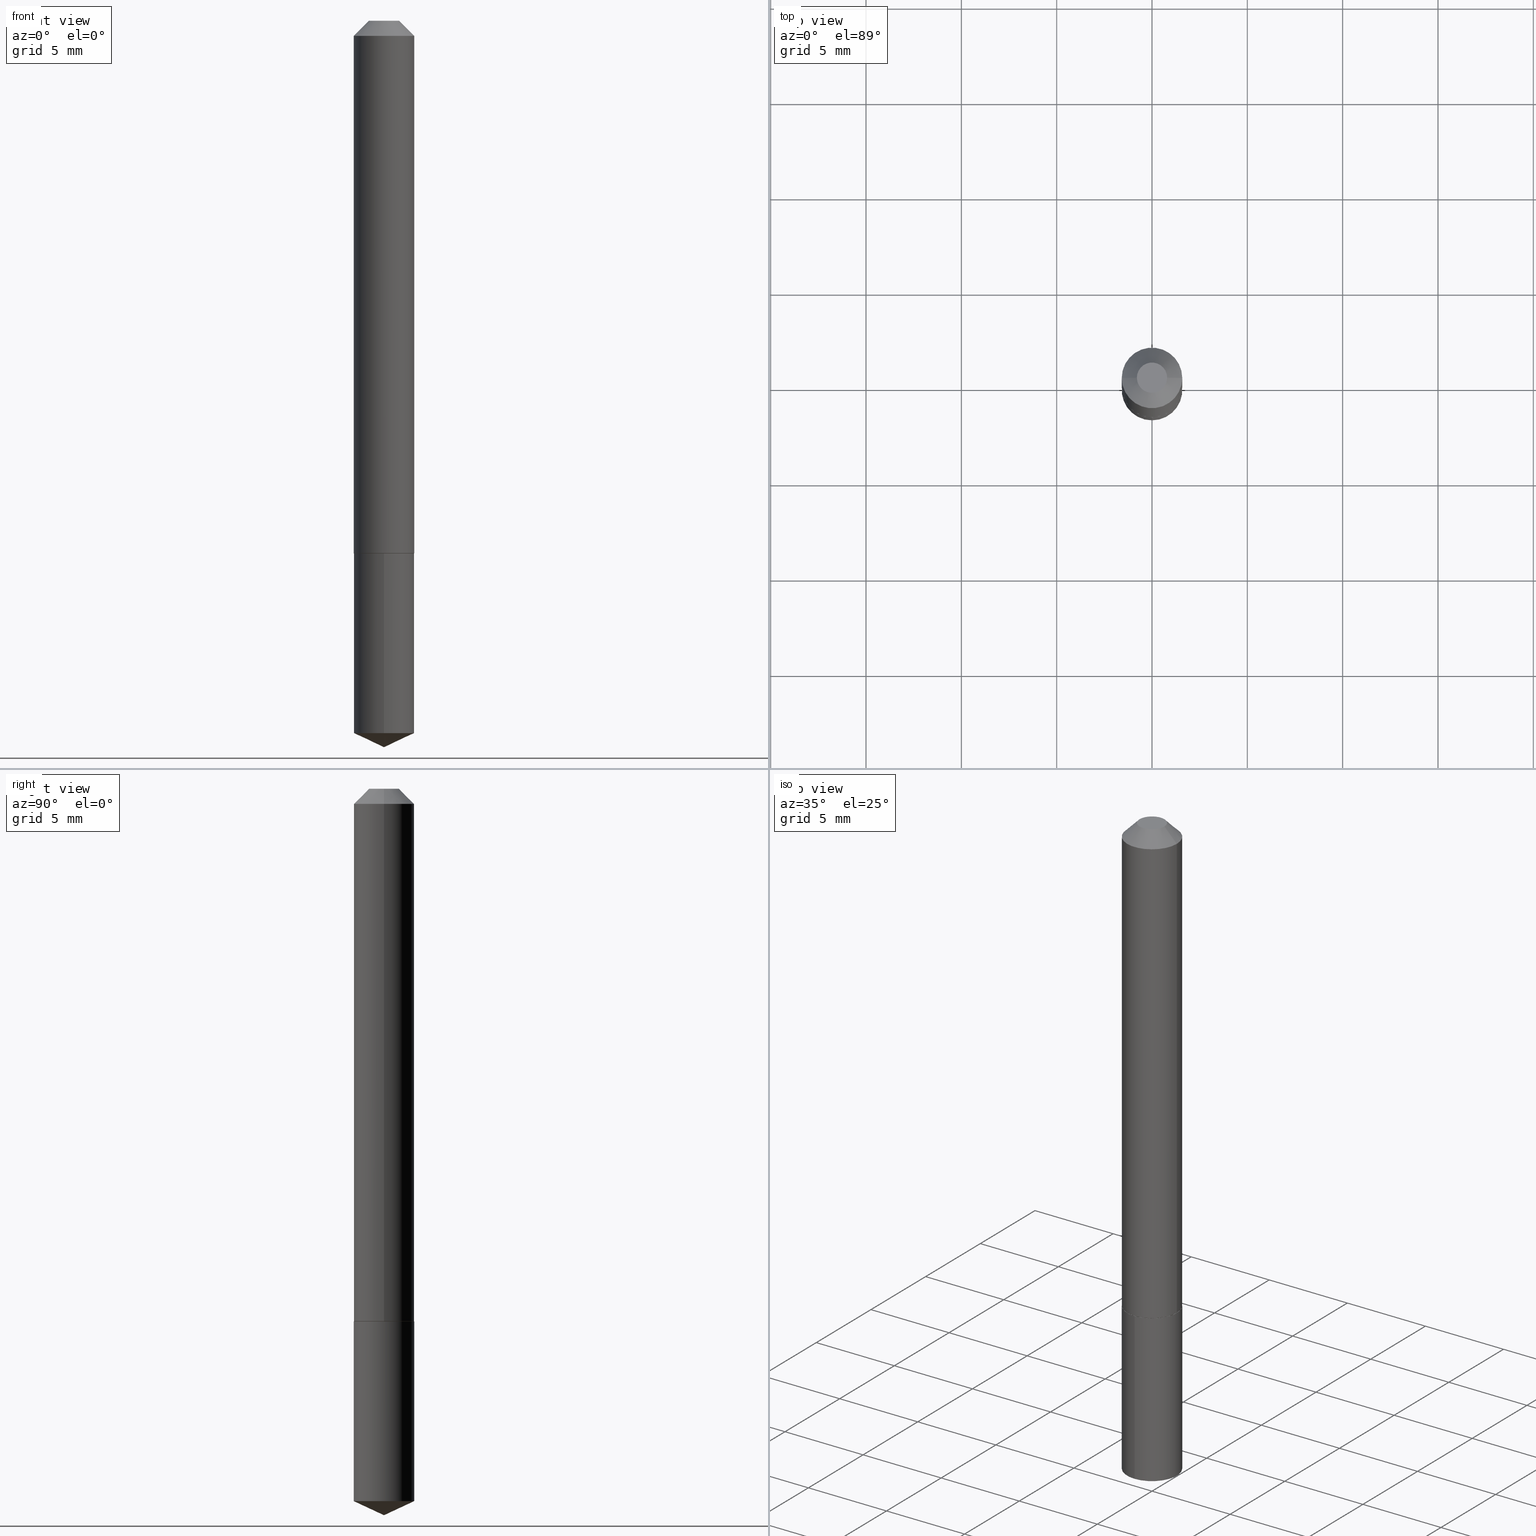
[diagram: canonical four-view strip — front | top / right | iso, engineering-drawing reading convention]
A machine part, canonical four-view strip (front | top / right | iso — engineering-drawing reading convention). The complete STEP part file that produces these views, byte-faithful:
ISO-10303-21;
HEADER;
FILE_DESCRIPTION (( 'STEP AP203' ),
    '1' );
FILE_NAME ('7231.STEP',
    '2024-04-23T14:58:22',
    ( '' ),
    ( '' ),
    'SwSTEP 2.0',
    'SolidWorks 2023',
    '' );
FILE_SCHEMA (( 'CONFIG_CONTROL_DESIGN' ));
ENDSEC;

DATA;
#1 = DIRECTION ( 'NONE',  ( 1.000000000000000000, -6.982962677686265133E-15, 0.000000000000000000 ) ) ;
#2 = EDGE_CURVE ( 'NONE', #253, #290, #151, .T. ) ;
#3 = EDGE_CURVE ( 'NONE', #327, #266, #338, .T. ) ;
#4 = CARTESIAN_POINT ( 'NONE',  ( -1.033218263338717117E-47, 1.475161848834455079E-33, 4.225031457058366143E-19 ) ) ;
#5 = PRODUCT_RELATED_PRODUCT_CATEGORY ( 'detail', '', ( #135 ) ) ;
#6 = CC_DESIGN_PERSON_AND_ORGANIZATION_ASSIGNMENT ( #346, #47, ( #53 ) ) ;
#7 = CARTESIAN_POINT ( 'NONE',  ( 4.440892098500985093E-16, 0.06249999999999485134, -1.470855771365312759 ) ) ;
#8 = ADVANCED_FACE ( 'NONE', ( #114 ), #263, .T. ) ;
#9 = CIRCLE ( 'NONE', #79, 0.06250000000000000000 ) ;
#10 = CC_DESIGN_APPROVAL ( #219, ( #288 ) ) ;
#11 =( CONVERSION_BASED_UNIT ( 'INCH', #279 ) LENGTH_UNIT ( ) NAMED_UNIT ( #49 ) );
#12 = EDGE_CURVE ( 'NONE', #25, #325, #182, .T. ) ;
#13 = DIRECTION ( 'NONE',  ( -2.445468806185136877E-29, 3.491481338843145188E-15, 1.000000000000000000 ) ) ;
#14 = APPROVAL ( #150, 'UNSPECIFIED' ) ;
#15 = EDGE_CURVE ( 'NONE', #268, #290, #153, .T. ) ;
#16 = CARTESIAN_POINT ( 'NONE',  ( -4.364351673553647495E-16, -0.06250000000000384415, -1.099999999999999645 ) ) ;
#17 = ORGANIZATION ( 'UNSPECIFIED', 'UNSPECIFIED', '' ) ;
#18 = CARTESIAN_POINT ( 'NONE',  ( 0.06200000000000011752, -4.273573158744009553E-15, -1.100000000000000089 ) ) ;
#19 = APPLICATION_PROTOCOL_DEFINITION ( 'international standard', 'config_control_design', 1994, #157 ) ;
#20 = EDGE_LOOP ( 'NONE', ( #258, #27, #147, #110 ) ) ;
#21 = SECURITY_CLASSIFICATION_LEVEL ( 'unclassified' ) ;
#22 = CARTESIAN_POINT ( 'NONE',  ( 2.688792952400557567E-29, -3.838883732058038598E-15, -1.099499999999999922 ) ) ;
#23 = AXIS2_PLACEMENT_3D ( 'NONE', #189, #40, #161 ) ;
#24 = CALENDAR_DATE ( 2024, 23, 4 ) ;
#25 = VERTEX_POINT ( 'NONE', #81 ) ;
#26 = PERSON_AND_ORGANIZATION ( #216, #17 ) ;
#27 = ORIENTED_EDGE ( 'NONE', *, *, #312, .T. ) ;
#28 = PERSON_AND_ORGANIZATION ( #216, #17 ) ;
#29 = ORIENTED_EDGE ( 'NONE', *, *, #316, .F. ) ;
#30 = CC_DESIGN_PERSON_AND_ORGANIZATION_ASSIGNMENT ( #261, #300, ( #135 ) ) ;
#31 = CIRCLE ( 'NONE', #339, 0.06250000000000000000 ) ;
#32 = CARTESIAN_POINT ( 'NONE',  ( 2.690015686803650369E-29, -3.840629472727460101E-15, -1.100000000000000089 ) ) ;
#33 = ADVANCED_FACE ( 'NONE', ( #270 ), #220, .F. ) ;
#34 = FACE_OUTER_BOUND ( 'NONE', #176, .T. ) ;
#35 = DIRECTION ( 'NONE',  ( 2.445468806185136597E-29, -3.491481338843145583E-15, -1.000000000000000000 ) ) ;
#36 = FACE_OUTER_BOUND ( 'NONE', #72, .T. ) ;
#37 = AXIS2_PLACEMENT_3D ( 'NONE', #330, #246, #1 ) ;
#38 = CC_DESIGN_APPROVAL ( #231, ( #53 ) ) ;
#39 = AXIS2_PLACEMENT_3D ( 'NONE', #317, #315, #132 ) ;
#40 = DIRECTION ( 'NONE',  ( 2.438088387897960049E-29, -3.491481338843145188E-15, -1.000000000000000000 ) ) ;
#41 = CARTESIAN_POINT ( 'NONE',  ( -0.03125000000000000000, 2.727719795971193003E-16, 4.225031457041200329E-19 ) ) ;
#42 = VERTEX_POINT ( 'NONE', #187 ) ;
#43 = CARTESIAN_POINT ( 'NONE',  ( 3.597037547860256761E-29, -5.135314194515580488E-15, -1.470855771365312537 ) ) ;
#44 = ORIENTED_EDGE ( 'NONE', *, *, #93, .F. ) ;
#45 = DIRECTION ( 'NONE',  ( -0.7071067811865453523, 2.468850131082234184E-15, -0.7071067811865496822 ) ) ;
#46 = MECHANICAL_CONTEXT ( 'NONE', #157, 'mechanical' ) ;
#47 = PERSON_AND_ORGANIZATION_ROLE ( 'design_supplier' ) ;
#48 = ORIENTED_EDGE ( 'NONE', *, *, #169, .T. ) ;
#49 = DIMENSIONAL_EXPONENTS ( 1.000000000000000000, 0.000000000000000000, 0.000000000000000000, 0.000000000000000000, 0.000000000000000000, 0.000000000000000000, 0.000000000000000000 ) ;
#50 = APPROVAL_STATUS ( 'not_yet_approved' ) ;
#51 = ORIENTED_EDGE ( 'NONE', *, *, #376, .F. ) ;
#52 = CALENDAR_DATE ( 2024, 23, 4 ) ;
#53 = PRODUCT_DEFINITION_FORMATION_WITH_SPECIFIED_SOURCE ( 'ANY', '', #135, .NOT_KNOWN. ) ;
#54 = ORIENTED_EDGE ( 'NONE', *, *, #64, .T. ) ;
#55 = APPROVAL_STATUS ( 'not_yet_approved' ) ;
#56 = ORIENTED_EDGE ( 'NONE', *, *, #169, .F. ) ;
#57 = CARTESIAN_POINT ( 'NONE',  ( -1.033218263338717117E-47, 1.475161848834455079E-33, 4.225031457058366143E-19 ) ) ;
#58 = ADVANCED_FACE ( 'NONE', ( #186 ), #159, .T. ) ;
#59 = CIRCLE ( 'NONE', #166, 0.06250000000000001388 ) ;
#60 = LOCAL_TIME ( 10, 58, 22.00000000000000000, #203 ) ;
#61 = CARTESIAN_POINT ( 'NONE',  ( 0.06250000000000001388, -5.378899166995698233E-16, -0.03125000000000020123 ) ) ;
#62 = FACE_OUTER_BOUND ( 'NONE', #326, .T. ) ;
#63 = DIRECTION ( 'NONE',  ( -6.982962677686265922E-15, -1.000000000000000000, 4.370956789862821150E-15 ) ) ;
#64 = EDGE_CURVE ( 'NONE', #366, #377, #285, .T. ) ;
#65 = FACE_OUTER_BOUND ( 'NONE', #301, .T. ) ;
#66 = CLOSED_SHELL ( 'NONE', ( #8, #104, #74, #58, #284 ) ) ;
#67 = DIRECTION ( 'NONE',  ( -2.445468806185136597E-29, 3.491481338843145583E-15, 1.000000000000000000 ) ) ;
#68 = FACE_OUTER_BOUND ( 'NONE', #178, .T. ) ;
#69 = DIRECTION ( 'NONE',  ( 1.000000000000000000, -6.982962677686262766E-15, 0.000000000000000000 ) ) ;
#70 = AXIS2_PLACEMENT_3D ( 'NONE', #158, #71, #311 ) ;
#71 = DIRECTION ( 'NONE',  ( -2.445468806185136597E-29, 3.491481338843145583E-15, 1.000000000000000000 ) ) ;
#72 = EDGE_LOOP ( 'NONE', ( #142, #172, #208 ) ) ;
#73 = DIRECTION ( 'NONE',  ( 1.000000000000000000, -6.982962677686265133E-15, 0.000000000000000000 ) ) ;
#74 = ADVANCED_FACE ( 'NONE', ( #62 ), #160, .T. ) ;
#75 = EDGE_CURVE ( 'NONE', #295, #42, #247, .T. ) ;
#76 = CC_DESIGN_DATE_AND_TIME_ASSIGNMENT ( #259, #297, ( #288 ) ) ;
#77 = CALENDAR_DATE ( 2024, 23, 4 ) ;
#78 = ORIENTED_EDGE ( 'NONE', *, *, #122, .F. ) ;
#79 = AXIS2_PLACEMENT_3D ( 'NONE', #214, #332, #96 ) ;
#80 = ORIENTED_EDGE ( 'NONE', *, *, #376, .T. ) ;
#81 = CARTESIAN_POINT ( 'NONE',  ( 3.668630493671656575E-29, -5.236610112693062748E-15, -1.500000000000000222 ) ) ;
#82 = ADVANCED_FACE ( 'NONE', ( #92 ), #369, .T. ) ;
#83 = DATE_TIME_ROLE ( 'classification_date' ) ;
#84 = ORIENTED_EDGE ( 'NONE', *, *, #15, .F. ) ;
#85 = AXIS2_PLACEMENT_3D ( 'NONE', #4, #156, #386 ) ;
#86 = APPROVAL_DATE_TIME ( #324, #219 ) ;
#87 = EDGE_CURVE ( 'NONE', #42, #295, #137, .T. ) ;
#88 = ORIENTED_EDGE ( 'NONE', *, *, #155, .F. ) ;
#89 = DIRECTION ( 'NONE',  ( 6.439704144417018520E-15, 0.9063077870366507138, 0.4226182617406979425 ) ) ;
#90 = FACE_OUTER_BOUND ( 'NONE', #170, .T. ) ;
#91 = LOCAL_TIME ( 10, 58, 22.00000000000000000, #322 ) ;
#92 = FACE_OUTER_BOUND ( 'NONE', #237, .T. ) ;
#93 = EDGE_CURVE ( 'NONE', #343, #253, #218, .T. ) ;
#94 = LINE ( 'NONE', #361, #124 ) ;
#95 = CARTESIAN_POINT ( 'NONE',  ( -9.262119711781453131E-28, 1.322067761427082688E-13, 37.87007874015748143 ) ) ;
#96 = DIRECTION ( 'NONE',  ( -6.982962677686265922E-15, -1.000000000000000000, 4.370956789862821150E-15 ) ) ;
#97 = VECTOR ( 'NONE', #180, 39.37007874015748854 ) ;
#98 =( LENGTH_UNIT ( ) NAMED_UNIT ( * ) SI_UNIT ( $, .METRE. ) );
#99 = DIRECTION ( 'NONE',  ( -2.445468806185136597E-29, 3.491481338843145583E-15, 1.000000000000000000 ) ) ;
#100 = CARTESIAN_POINT ( 'NONE',  ( 3.668003809893860852E-29, -5.237507559531491394E-15, -1.500000000000000222 ) ) ;
#101 = AXIS2_PLACEMENT_3D ( 'NONE', #310, #331, #360 ) ;
#102 = VECTOR ( 'NONE', #13, 39.37007874015748143 ) ;
#103 = ADVANCED_FACE ( 'NONE', ( #65 ), #303, .T. ) ;
#104 = ADVANCED_FACE ( 'NONE', ( #36 ), #184, .T. ) ;
#105 = CARTESIAN_POINT ( 'NONE',  ( 0.06250000000000006939, -4.364351673553921624E-16, 3.047610484872463374E-30 ) ) ;
#106 = ORIENTED_EDGE ( 'NONE', *, *, #354, .F. ) ;
#107 = FACE_OUTER_BOUND ( 'NONE', #108, .T. ) ;
#108 = EDGE_LOOP ( 'NONE', ( #323, #194, #240, #56 ) ) ;
#109 = APPROVAL_ROLE ( '' ) ;
#110 = ORIENTED_EDGE ( 'NONE', *, *, #299, .F. ) ;
#111 = AXIS2_PLACEMENT_3D ( 'NONE', #22, #380, #348 ) ;
#112 = SECURITY_CLASSIFICATION ( '', '', #21 ) ;
#113 =( NAMED_UNIT ( * ) PLANE_ANGLE_UNIT ( ) SI_UNIT ( $, .RADIAN. ) );
#114 = FACE_OUTER_BOUND ( 'NONE', #118, .T. ) ;
#115 = DATE_AND_TIME ( #77, #256 ) ;
#116 = ORIENTED_EDGE ( 'NONE', *, *, #354, .T. ) ;
#117 = APPROVAL_DATE_TIME ( #148, #14 ) ;
#118 = EDGE_LOOP ( 'NONE', ( #321, #230, #209, #51 ) ) ;
#119 = PERSON_AND_ORGANIZATION ( #216, #17 ) ;
#120 = ORIENTED_EDGE ( 'NONE', *, *, #287, .F. ) ;
#121 = CARTESIAN_POINT ( 'NONE',  ( 2.688792952400557567E-29, -3.838883732058038598E-15, -1.099499999999999922 ) ) ;
#122 = EDGE_CURVE ( 'NONE', #343, #268, #94, .T. ) ;
#123 = CARTESIAN_POINT ( 'NONE',  ( 7.642090019328601786E-31, -1.091087918388490144E-16, -0.03125000000000020123 ) ) ;
#124 = VECTOR ( 'NONE', #215, 39.37007874015748854 ) ;
#125 = AXIS2_PLACEMENT_3D ( 'NONE', #190, #340, #221 ) ;
#126 = DIRECTION ( 'NONE',  ( -2.445753662447770863E-29, 3.491073408462041832E-15, 1.000000000000000000 ) ) ;
#127 = CARTESIAN_POINT ( 'NONE',  ( 2.690015686803650369E-29, -3.840629472727460101E-15, -1.100000000000000089 ) ) ;
#128 = DIRECTION ( 'NONE',  ( -2.445753662447770863E-29, 3.491073408462041832E-15, 1.000000000000000000 ) ) ;
#129 = EDGE_CURVE ( 'NONE', #345, #325, #9, .T. ) ;
#130 = DIRECTION ( 'NONE',  ( 2.445753662447770583E-29, -3.491073408462041832E-15, -1.000000000000000000 ) ) ;
#131 = CC_DESIGN_SECURITY_CLASSIFICATION ( #112, ( #53 ) ) ;
#132 = DIRECTION ( 'NONE',  ( 1.000000000000000000, -6.982962677686266711E-15, 4.876176775795935793E-29 ) ) ;
#133 = EDGE_LOOP ( 'NONE', ( #88, #116, #80, #352 ) ) ;
#134 = CARTESIAN_POINT ( 'NONE',  ( 2.690015686803650369E-29, -3.840629472727460101E-15, -1.100000000000000089 ) ) ;
#135 = PRODUCT ( '7231', '7231', '', ( #46 ) ) ;
#136 = PLANE ( 'NONE',  #125 ) ;
#137 = CIRCLE ( 'NONE', #389, 0.06250000000000000000 ) ;
#138 = CIRCLE ( 'NONE', #188, 0.06200000000000011752 ) ;
#139 = UNCERTAINTY_MEASURE_WITH_UNIT (LENGTH_MEASURE( 1.000000000000000082E-05 ), #11, 'distance_accuracy_value', 'NONE');
#140 = CARTESIAN_POINT ( 'NONE',  ( -0.06250000000000001388, 3.273263755165427167E-16, -0.03125000000000020123 ) ) ;
#141 = ORIENTED_EDGE ( 'NONE', *, *, #306, .T. ) ;
#142 = ORIENTED_EDGE ( 'NONE', *, *, #306, .F. ) ;
#143 = PERSON_AND_ORGANIZATION ( #216, #17 ) ;
#144 = ORIENTED_EDGE ( 'NONE', *, *, #239, .F. ) ;
#145 = VECTOR ( 'NONE', #45, 39.37007874015748143 ) ;
#146 = PERSON_AND_ORGANIZATION ( #216, #17 ) ;
#147 = ORIENTED_EDGE ( 'NONE', *, *, #64, .F. ) ;
#148 = DATE_AND_TIME ( #52, #60 ) ;
#149 = ORIENTED_EDGE ( 'NONE', *, *, #75, .T. ) ;
#150 = APPROVAL_STATUS ( 'not_yet_approved' ) ;
#151 = LINE ( 'NONE', #204, #97 ) ;
#152 = CC_DESIGN_PERSON_AND_ORGANIZATION_ASSIGNMENT ( #146, #381, ( #288 ) ) ;
#153 = CIRCLE ( 'NONE', #111, 0.06250000000000013878 ) ;
#154 = VECTOR ( 'NONE', #257, 39.37007874015748143 ) ;
#155 = EDGE_CURVE ( 'NONE', #325, #42, #242, .T. ) ;
#156 = DIRECTION ( 'NONE',  ( -2.445468806185136597E-29, 3.491481338843145583E-15, 1.000000000000000000 ) ) ;
#157 = APPLICATION_CONTEXT ( 'configuration controlled 3d designs of mechanical parts and assemblies' ) ;
#158 = CARTESIAN_POINT ( 'NONE',  ( 2.688792952400557567E-29, -3.838883732058038598E-15, -1.099499999999999922 ) ) ;
#159 = CYLINDRICAL_SURFACE ( 'NONE', #179, 0.06250000000000000000 ) ;
#160 = CONICAL_SURFACE ( 'NONE', #198, 84.42940631927356776, 1.134464013796312454 ) ;
#161 = DIRECTION ( 'NONE',  ( -1.000000000000000000, 6.982962677686265922E-15, -4.876176775795935793E-29 ) ) ;
#162 = DIRECTION ( 'NONE',  ( -2.445468806185136597E-29, 3.491481338843145583E-15, 1.000000000000000000 ) ) ;
#163 = CARTESIAN_POINT ( 'NONE',  ( -4.364351673553647495E-16, -0.06250000000000384415, -1.099999999999999645 ) ) ;
#164 = CC_DESIGN_PERSON_AND_ORGANIZATION_ASSIGNMENT ( #119, #197, ( #53 ) ) ;
#165 = DIRECTION ( 'NONE',  ( 6.982962677686265922E-15, 1.000000000000000000, -3.491073408462041832E-15 ) ) ;
#166 = AXIS2_PLACEMENT_3D ( 'NONE', #123, #162, #276 ) ;
#167 = MANIFOLD_SOLID_BREP ( 'Body-Move/Copy2[1]', #66 ) ;
#168 = AXIS2_PLACEMENT_3D ( 'NONE', #223, #252, #69 ) ;
#169 = EDGE_CURVE ( 'NONE', #377, #366, #59, .T. ) ;
#170 = EDGE_LOOP ( 'NONE', ( #350, #228, #175, #29 ) ) ;
#171 = CARTESIAN_POINT ( 'NONE',  ( 0.03125000000000000000, -3.761402395649650430E-16, 4.225031457079141149E-19 ) ) ;
#172 = ORIENTED_EDGE ( 'NONE', *, *, #12, .T. ) ;
#173 = LINE ( 'NONE', #16, #154 ) ;
#174 = DATE_AND_TIME ( #293, #304 ) ;
#175 = ORIENTED_EDGE ( 'NONE', *, *, #122, .T. ) ;
#176 = EDGE_LOOP ( 'NONE', ( #374, #200, #84, #78 ) ) ;
#177 = PERSON_AND_ORGANIZATION ( #216, #17 ) ;
#178 = EDGE_LOOP ( 'NONE', ( #149, #260 ) ) ;
#179 = AXIS2_PLACEMENT_3D ( 'NONE', #245, #302, #63 ) ;
#180 = DIRECTION ( 'NONE',  ( -0.7071067811865353603, 7.493145998870309984E-15, 0.7071067811865595631 ) ) ;
#181 = COORDINATED_UNIVERSAL_TIME_OFFSET ( 5, 0, .BEHIND. ) ;
#182 = LINE ( 'NONE', #385, #224 ) ;
#183 = DIRECTION ( 'NONE',  ( -2.445753662447770863E-29, 3.491073408462041832E-15, 1.000000000000000000 ) ) ;
#184 = CONICAL_SURFACE ( 'NONE', #294, 84.42940631927356776, 1.134464013796312454 ) ;
#185 = DIRECTION ( 'NONE',  ( 0.7071067811865453523, -7.319954787623248157E-15, -0.7071067811865496822 ) ) ;
#186 = FACE_OUTER_BOUND ( 'NONE', #133, .T. ) ;
#187 = CARTESIAN_POINT ( 'NONE',  ( 4.440892098500986079E-16, 0.06249999999999615585, -1.100000000000000311 ) ) ;
#188 = AXIS2_PLACEMENT_3D ( 'NONE', #134, #99, #73 ) ;
#189 = CARTESIAN_POINT ( 'NONE',  ( -5.166091316693585586E-48, 7.375809244172275393E-34, 2.112515728529183071E-19 ) ) ;
#190 = CARTESIAN_POINT ( 'NONE',  ( 2.690015686803650369E-29, -3.840629472727460101E-15, -1.100000000000000089 ) ) ;
#191 = CYLINDRICAL_SURFACE ( 'NONE', #39, 0.06250000000000006939 ) ;
#192 = LINE ( 'NONE', #342, #102 ) ;
#193 = APPROVAL_PERSON_ORGANIZATION ( #28, #14, #267 ) ;
#194 = ORIENTED_EDGE ( 'NONE', *, *, #316, .T. ) ;
#195 = CARTESIAN_POINT ( 'NONE',  ( -4.364351673553555790E-16, -0.06250000000000513478, -1.470855771365312314 ) ) ;
#196 = FACE_OUTER_BOUND ( 'NONE', #20, .T. ) ;
#197 = PERSON_AND_ORGANIZATION_ROLE ( 'creator' ) ;
#198 = AXIS2_PLACEMENT_3D ( 'NONE', #269, #308, #307 ) ;
#199 = EDGE_CURVE ( 'NONE', #266, #327, #329, .T. ) ;
#200 = ORIENTED_EDGE ( 'NONE', *, *, #2, .T. ) ;
#201 = COORDINATED_UNIVERSAL_TIME_OFFSET ( 5, 0, .BEHIND. ) ;
#202 = CARTESIAN_POINT ( 'NONE',  ( 2.690015686803650369E-29, -3.840629472727460101E-15, -1.100000000000000089 ) ) ;
#203 = COORDINATED_UNIVERSAL_TIME_OFFSET ( 5, 0, .BEHIND. ) ;
#204 = CARTESIAN_POINT ( 'NONE',  ( -0.06250000000000013878, -3.394794522207974798E-15, -1.099499999999999922 ) ) ;
#205 = VECTOR ( 'NONE', #183, 39.37007874015748143 ) ;
#206 = AXIS2_PLACEMENT_3D ( 'NONE', #291, #351, #234 ) ;
#207 = SHAPE_DEFINITION_REPRESENTATION ( #378, #372 ) ;
#208 = ORIENTED_EDGE ( 'NONE', *, *, #129, .F. ) ;
#209 = ORIENTED_EDGE ( 'NONE', *, *, #75, .F. ) ;
#210 = CARTESIAN_POINT ( 'NONE',  ( 7.642090019328601786E-31, -1.091087918388490144E-16, -0.03125000000000020123 ) ) ;
#211 = APPLICATION_CONTEXT ( 'configuration controlled 3d designs of mechanical parts and assemblies' ) ;
#212 = AXIS2_PLACEMENT_3D ( 'NONE', #121, #241, #356 ) ;
#213 = DIRECTION ( 'NONE',  ( -6.982962677686265922E-15, -1.000000000000000000, 4.370956789862821150E-15 ) ) ;
#214 = CARTESIAN_POINT ( 'NONE',  ( 3.597037547860256761E-29, -5.135314194515580488E-15, -1.470855771365312537 ) ) ;
#215 = DIRECTION ( 'NONE',  ( 0.7071067811865353603, -2.468850131082130054E-15, 0.7071067811865595631 ) ) ;
#216 = PERSON ( 'UNSPECIFIED', 'UNSPECIFIED', 'UNSPECIFIED', ('UNSPECIFIED'), ('UNSPECIFIED'), ('UNSPECIFIED') ) ;
#217 = ADVANCED_FACE ( 'NONE', ( #90 ), #309, .T. ) ;
#218 = CIRCLE ( 'NONE', #37, 0.06200000000000011752 ) ;
#219 = APPROVAL ( #50, 'UNSPECIFIED' ) ;
#220 = PLANE ( 'NONE',  #23 ) ;
#221 = DIRECTION ( 'NONE',  ( 1.000000000000000000, -6.982962677686265922E-15, 4.876176775795935793E-29 ) ) ;
#222 = DIRECTION ( 'NONE',  ( -6.982962677686265922E-15, -1.000000000000000000, 4.370956789862821150E-15 ) ) ;
#223 = CARTESIAN_POINT ( 'NONE',  ( 2.688792952400557567E-29, -3.838883732058038598E-15, -1.099499999999999922 ) ) ;
#224 = VECTOR ( 'NONE', #89, 39.37007874015748854 ) ;
#225 = LOCAL_TIME ( 10, 58, 22.00000000000000000, #201 ) ;
#226 = CC_DESIGN_PERSON_AND_ORGANIZATION_ASSIGNMENT ( #177, #319, ( #112 ) ) ;
#227 = LINE ( 'NONE', #100, #248 ) ;
#228 = ORIENTED_EDGE ( 'NONE', *, *, #287, .T. ) ;
#229 = CARTESIAN_POINT ( 'NONE',  ( 0.06250000000000013878, -4.275318899413431056E-15, -1.099499999999999922 ) ) ;
#230 = ORIENTED_EDGE ( 'NONE', *, *, #155, .T. ) ;
#231 = APPROVAL ( #55, 'UNSPECIFIED' ) ;
#232 = ORIENTED_EDGE ( 'NONE', *, *, #239, .T. ) ;
#233 = VECTOR ( 'NONE', #249, 39.37007874015748143 ) ;
#234 = DIRECTION ( 'NONE',  ( 1.000000000000000000, 0.000000000000000000, 0.000000000000000000 ) ) ;
#235 = DIRECTION ( 'NONE',  ( -6.982962677686265922E-15, -1.000000000000000000, 4.370956789862821150E-15 ) ) ;
#236 = COORDINATED_UNIVERSAL_TIME_OFFSET ( 5, 0, .BEHIND. ) ;
#237 = EDGE_LOOP ( 'NONE', ( #144, #281, #250, #48 ) ) ;
#238 = ORIENTED_EDGE ( 'NONE', *, *, #358, .F. ) ;
#239 = EDGE_CURVE ( 'NONE', #327, #366, #328, .T. ) ;
#240 = ORIENTED_EDGE ( 'NONE', *, *, #299, .T. ) ;
#241 = DIRECTION ( 'NONE',  ( -2.445468806185136597E-29, 3.491481338843145583E-15, 1.000000000000000000 ) ) ;
#242 = LINE ( 'NONE', #334, #205 ) ;
#243 = CIRCLE ( 'NONE', #168, 0.06250000000000013878 ) ;
#244 = DIRECTION ( 'NONE',  ( -1.000000000000000000, 6.982962677686265922E-15, 0.000000000000000000 ) ) ;
#245 = CARTESIAN_POINT ( 'NONE',  ( 2.690015686803650369E-29, -3.840629472727460101E-15, -1.100000000000000089 ) ) ;
#246 = DIRECTION ( 'NONE',  ( -2.445468806185136597E-29, 3.491481338843145583E-15, 1.000000000000000000 ) ) ;
#247 = CIRCLE ( 'NONE', #273, 0.06250000000000000000 ) ;
#248 = VECTOR ( 'NONE', #280, 39.37007874015748854 ) ;
#249 = DIRECTION ( 'NONE',  ( -2.445468806185136877E-29, 3.491481338843145188E-15, 1.000000000000000000 ) ) ;
#250 = ORIENTED_EDGE ( 'NONE', *, *, #358, .T. ) ;
#251 = CARTESIAN_POINT ( 'NONE',  ( -0.06250000000000013878, -3.394794522207974798E-15, -1.099499999999999922 ) ) ;
#252 = DIRECTION ( 'NONE',  ( -2.445468806185136597E-29, 3.491481338843145583E-15, 1.000000000000000000 ) ) ;
#253 = VERTEX_POINT ( 'NONE', #305 ) ;
#254 = ADVANCED_FACE ( 'NONE', ( #34 ), #274, .T. ) ;
#255 = DIRECTION ( 'NONE',  ( 1.000000000000000000, -6.982962677686266711E-15, 4.876176775795935793E-29 ) ) ;
#256 = LOCAL_TIME ( 10, 58, 22.00000000000000000, #181 ) ;
#257 = DIRECTION ( 'NONE',  ( -2.445753662447770863E-29, 3.491073408462041832E-15, 1.000000000000000000 ) ) ;
#258 = ORIENTED_EDGE ( 'NONE', *, *, #15, .T. ) ;
#259 = DATE_AND_TIME ( #24, #91 ) ;
#260 = ORIENTED_EDGE ( 'NONE', *, *, #87, .T. ) ;
#261 = PERSON_AND_ORGANIZATION ( #216, #17 ) ;
#262 = ADVANCED_FACE ( 'NONE', ( #373 ), #136, .F. ) ;
#263 = CYLINDRICAL_SURFACE ( 'NONE', #318, 0.06250000000000000000 ) ;
#264 = ORIENTED_EDGE ( 'NONE', *, *, #3, .T. ) ;
#265 = APPROVAL_ROLE ( '' ) ;
#266 = VERTEX_POINT ( 'NONE', #41 ) ;
#267 = APPROVAL_ROLE ( '' ) ;
#268 = VERTEX_POINT ( 'NONE', #229 ) ;
#269 = CARTESIAN_POINT ( 'NONE',  ( -9.262119711781453131E-28, 1.322067761427082688E-13, 37.87007874015748143 ) ) ;
#270 = FACE_OUTER_BOUND ( 'NONE', #298, .T. ) ;
#271 = DIRECTION ( 'NONE',  ( -6.982962677686265922E-15, -1.000000000000000000, 4.370956789862821150E-15 ) ) ;
#272 = ADVANCED_FACE ( 'NONE', ( #107 ), #367, .T. ) ;
#273 = AXIS2_PLACEMENT_3D ( 'NONE', #127, #126, #213 ) ;
#274 = CONICAL_SURFACE ( 'NONE', #70, 0.06250000000000013878, 0.7853981633974311816 ) ;
#275 = CARTESIAN_POINT ( 'NONE',  ( 7.642090019328601786E-31, -1.091087918388490144E-16, -0.03125000000000020123 ) ) ;
#276 = DIRECTION ( 'NONE',  ( 1.000000000000000000, -6.982962677686265922E-15, 0.000000000000000000 ) ) ;
#277 = CARTESIAN_POINT ( 'NONE',  ( 0.000000000000000000, 0.000000000000000000, 0.000000000000000000 ) ) ;
#278 = CLOSED_SHELL ( 'NONE', ( #103, #353, #254, #262, #217, #272, #82, #33 ) ) ;
#279 = LENGTH_MEASURE_WITH_UNIT ( LENGTH_MEASURE( 0.02539999999999999897 ), #98 );
#280 = DIRECTION ( 'NONE',  ( -6.328713451373362279E-15, -0.9063077870366476052, 0.4226182617407041597 ) ) ;
#281 = ORIENTED_EDGE ( 'NONE', *, *, #199, .F. ) ;
#282 = LINE ( 'NONE', #140, #145 ) ;
#283 = ORIENTED_EDGE ( 'NONE', *, *, #3, .F. ) ;
#284 = ADVANCED_FACE ( 'NONE', ( #68 ), #335, .F. ) ;
#285 = CIRCLE ( 'NONE', #362, 0.06250000000000001388 ) ;
#286 = CARTESIAN_POINT ( 'NONE',  ( 2.690015686803650369E-29, -3.840629472727460101E-15, -1.100000000000000089 ) ) ;
#287 = EDGE_CURVE ( 'NONE', #253, #343, #138, .T. ) ;
#288 = PRODUCT_DEFINITION ( 'UNKNOWN', '', #53, #336 ) ;
#289 = MANIFOLD_SOLID_BREP ( 'Body-Move/Copy2[2]', #278 ) ;
#290 = VERTEX_POINT ( 'NONE', #251 ) ;
#291 = CARTESIAN_POINT ( 'NONE',  ( 0.000000000000000000, 0.000000000000000000, 0.000000000000000000 ) ) ;
#292 = DIRECTION ( 'NONE',  ( -2.445468806185136597E-29, 3.491481338843145583E-15, 1.000000000000000000 ) ) ;
#293 = CALENDAR_DATE ( 2024, 23, 4 ) ;
#294 = AXIS2_PLACEMENT_3D ( 'NONE', #95, #357, #359 ) ;
#295 = VERTEX_POINT ( 'NONE', #163 ) ;
#296 = AXIS2_PLACEMENT_3D ( 'NONE', #286, #130, #165 ) ;
#297 = DATE_TIME_ROLE ( 'creation_date' ) ;
#298 = EDGE_LOOP ( 'NONE', ( #341, #264 ) ) ;
#299 = EDGE_CURVE ( 'NONE', #268, #366, #371, .T. ) ;
#300 = PERSON_AND_ORGANIZATION_ROLE ( 'design_owner' ) ;
#301 = EDGE_LOOP ( 'NONE', ( #283, #232, #54, #238 ) ) ;
#302 = DIRECTION ( 'NONE',  ( -2.445753662447770863E-29, 3.491073408462041832E-15, 1.000000000000000000 ) ) ;
#303 = CONICAL_SURFACE ( 'NONE', #101, 0.06250000000000001388, 0.7853981633974452814 ) ;
#304 = LOCAL_TIME ( 10, 58, 22.00000000000000000, #236 ) ;
#305 = CARTESIAN_POINT ( 'NONE',  ( -0.06200000000000011752, -3.397443749382086394E-15, -1.100000000000000089 ) ) ;
#306 = EDGE_CURVE ( 'NONE', #25, #345, #227, .T. ) ;
#307 = DIRECTION ( 'NONE',  ( -6.982962677686266711E-15, -1.000000000000000000, 3.520397390770485819E-15 ) ) ;
#308 = DIRECTION ( 'NONE',  ( -2.445753662447770863E-29, 3.491073408462041832E-15, 1.000000000000000000 ) ) ;
#309 = CONICAL_SURFACE ( 'NONE', #212, 0.06250000000000013878, 0.7853981633974311816 ) ;
#310 = CARTESIAN_POINT ( 'NONE',  ( 7.642090019328601786E-31, -1.091087918388490144E-16, -0.03125000000000020123 ) ) ;
#311 = DIRECTION ( 'NONE',  ( 1.000000000000000000, -6.982962677686262766E-15, 0.000000000000000000 ) ) ;
#312 = EDGE_CURVE ( 'NONE', #290, #377, #192, .T. ) ;
#313 = CC_DESIGN_APPROVAL ( #14, ( #112 ) ) ;
#314 = CARTESIAN_POINT ( 'NONE',  ( -0.06250000000000001388, -1.529907052098379853E-15, -0.03125000000000020123 ) ) ;
#315 = DIRECTION ( 'NONE',  ( -2.445468806185136597E-29, 3.491481338843145583E-15, 1.000000000000000000 ) ) ;
#316 = EDGE_CURVE ( 'NONE', #290, #268, #243, .T. ) ;
#317 = CARTESIAN_POINT ( 'NONE',  ( 0.000000000000000000, 0.000000000000000000, 0.000000000000000000 ) ) ;
#318 = AXIS2_PLACEMENT_3D ( 'NONE', #202, #383, #235 ) ;
#319 = PERSON_AND_ORGANIZATION_ROLE ( 'classification_officer' ) ;
#320 = APPLICATION_PROTOCOL_DEFINITION ( 'international standard', 'config_control_design', 1994, #211 ) ;
#321 = ORIENTED_EDGE ( 'NONE', *, *, #129, .T. ) ;
#322 = COORDINATED_UNIVERSAL_TIME_OFFSET ( 5, 0, .BEHIND. ) ;
#323 = ORIENTED_EDGE ( 'NONE', *, *, #312, .F. ) ;
#324 = DATE_AND_TIME ( #344, #225 ) ;
#325 = VERTEX_POINT ( 'NONE', #7 ) ;
#326 = EDGE_LOOP ( 'NONE', ( #347, #141, #106 ) ) ;
#327 = VERTEX_POINT ( 'NONE', #171 ) ;
#328 = LINE ( 'NONE', #61, #379 ) ;
#329 = CIRCLE ( 'NONE', #85, 0.03125000000000000000 ) ;
#330 = CARTESIAN_POINT ( 'NONE',  ( 2.690015686803650369E-29, -3.840629472727460101E-15, -1.100000000000000089 ) ) ;
#331 = DIRECTION ( 'NONE',  ( 2.445468806185136597E-29, -3.491481338843145583E-15, -1.000000000000000000 ) ) ;
#332 = DIRECTION ( 'NONE',  ( -2.445753662447770863E-29, 3.491073408462041832E-15, 1.000000000000000000 ) ) ;
#333 = AXIS2_PLACEMENT_3D ( 'NONE', #277, #67, #255 ) ;
#334 = CARTESIAN_POINT ( 'NONE',  ( 4.440892098500894374E-16, 0.06249999999999615585, -1.100000000000000311 ) ) ;
#335 = PLANE ( 'NONE',  #296 ) ;
#336 = DESIGN_CONTEXT ( 'detailed design', #211, 'design' ) ;
#337 = CARTESIAN_POINT ( 'NONE',  ( 0.06250000000000001388, -5.455439591942407701E-16, -0.03125000000000020123 ) ) ;
#338 = CIRCLE ( 'NONE', #368, 0.03125000000000000000 ) ;
#339 = AXIS2_PLACEMENT_3D ( 'NONE', #43, #365, #222 ) ;
#340 = DIRECTION ( 'NONE',  ( -2.438088387897960049E-29, 3.491481338843145188E-15, 1.000000000000000000 ) ) ;
#341 = ORIENTED_EDGE ( 'NONE', *, *, #199, .T. ) ;
#342 = CARTESIAN_POINT ( 'NONE',  ( -0.06250000000000006939, 4.440892098500631092E-16, -3.074334431409319267E-30 ) ) ;
#343 = VERTEX_POINT ( 'NONE', #18 ) ;
#344 = CALENDAR_DATE ( 2024, 23, 4 ) ;
#345 = VERTEX_POINT ( 'NONE', #195 ) ;
#346 = PERSON_AND_ORGANIZATION ( #216, #17 ) ;
#347 = ORIENTED_EDGE ( 'NONE', *, *, #12, .F. ) ;
#348 = DIRECTION ( 'NONE',  ( 1.000000000000000000, -6.982962677686262766E-15, 0.000000000000000000 ) ) ;
#349 = APPROVAL_DATE_TIME ( #115, #231 ) ;
#350 = ORIENTED_EDGE ( 'NONE', *, *, #2, .F. ) ;
#351 = DIRECTION ( 'NONE',  ( 0.000000000000000000, 0.000000000000000000, 1.000000000000000000 ) ) ;
#352 = ORIENTED_EDGE ( 'NONE', *, *, #87, .F. ) ;
#353 = ADVANCED_FACE ( 'NONE', ( #196 ), #191, .T. ) ;
#354 = EDGE_CURVE ( 'NONE', #325, #345, #31, .T. ) ;
#355 = DIRECTION ( 'NONE',  ( 1.000000000000000000, -6.982962677686266711E-15, 4.876242311950517246E-29 ) ) ;
#356 = DIRECTION ( 'NONE',  ( 1.000000000000000000, -6.982962677686262766E-15, 0.000000000000000000 ) ) ;
#357 = DIRECTION ( 'NONE',  ( -2.445753662447770863E-29, 3.491073408462041832E-15, 1.000000000000000000 ) ) ;
#358 = EDGE_CURVE ( 'NONE', #266, #377, #282, .T. ) ;
#359 = DIRECTION ( 'NONE',  ( -6.982962677686266711E-15, -1.000000000000000000, 3.520397390770485819E-15 ) ) ;
#360 = DIRECTION ( 'NONE',  ( -1.000000000000000000, 6.982962677686265922E-15, 0.000000000000000000 ) ) ;
#361 = CARTESIAN_POINT ( 'NONE',  ( 0.06250000000000013878, -4.275318899413431056E-15, -1.099499999999999922 ) ) ;
#362 = AXIS2_PLACEMENT_3D ( 'NONE', #210, #388, #387 ) ;
#363 = APPROVAL_PERSON_ORGANIZATION ( #26, #231, #109 ) ;
#364 = CC_DESIGN_DATE_AND_TIME_ASSIGNMENT ( #174, #83, ( #112 ) ) ;
#365 = DIRECTION ( 'NONE',  ( -2.445753662447770863E-29, 3.491073408462041832E-15, 1.000000000000000000 ) ) ;
#366 = VERTEX_POINT ( 'NONE', #337 ) ;
#367 = CYLINDRICAL_SURFACE ( 'NONE', #333, 0.06250000000000006939 ) ;
#368 = AXIS2_PLACEMENT_3D ( 'NONE', #57, #292, #355 ) ;
#369 = CONICAL_SURFACE ( 'NONE', #384, 0.06250000000000001388, 0.7853981633974452814 ) ;
#370 =( GEOMETRIC_REPRESENTATION_CONTEXT ( 3 ) GLOBAL_UNCERTAINTY_ASSIGNED_CONTEXT ( ( #139 ) ) GLOBAL_UNIT_ASSIGNED_CONTEXT ( ( #11, #113, #375 ) ) REPRESENTATION_CONTEXT ( 'NONE', 'WORKASPACE' ) );
#371 = LINE ( 'NONE', #105, #233 ) ;
#372 = ADVANCED_BREP_SHAPE_REPRESENTATION ( '7231', ( #167, #289, #206 ), #370 ) ;
#373 = FACE_OUTER_BOUND ( 'NONE', #382, .T. ) ;
#374 = ORIENTED_EDGE ( 'NONE', *, *, #93, .T. ) ;
#375 =( NAMED_UNIT ( * ) SI_UNIT ( $, .STERADIAN. ) SOLID_ANGLE_UNIT ( ) );
#376 = EDGE_CURVE ( 'NONE', #345, #295, #173, .T. ) ;
#377 = VERTEX_POINT ( 'NONE', #314 ) ;
#378 = PRODUCT_DEFINITION_SHAPE ( 'NONE', 'NONE',  #288 ) ;
#379 = VECTOR ( 'NONE', #185, 39.37007874015748143 ) ;
#380 = DIRECTION ( 'NONE',  ( -2.445468806185136597E-29, 3.491481338843145583E-15, 1.000000000000000000 ) ) ;
#381 = PERSON_AND_ORGANIZATION_ROLE ( 'creator' ) ;
#382 = EDGE_LOOP ( 'NONE', ( #44, #120 ) ) ;
#383 = DIRECTION ( 'NONE',  ( -2.445753662447770863E-29, 3.491073408462041832E-15, 1.000000000000000000 ) ) ;
#384 = AXIS2_PLACEMENT_3D ( 'NONE', #275, #35, #244 ) ;
#385 = CARTESIAN_POINT ( 'NONE',  ( 3.668635988948647166E-29, -5.236610112693061959E-15, -1.500000000000000222 ) ) ;
#386 = DIRECTION ( 'NONE',  ( 1.000000000000000000, -6.982962677686266711E-15, 4.876242311950517246E-29 ) ) ;
#387 = DIRECTION ( 'NONE',  ( 1.000000000000000000, -6.982962677686265922E-15, 0.000000000000000000 ) ) ;
#388 = DIRECTION ( 'NONE',  ( -2.445468806185136597E-29, 3.491481338843145583E-15, 1.000000000000000000 ) ) ;
#389 = AXIS2_PLACEMENT_3D ( 'NONE', #32, #128, #271 ) ;
#390 = APPROVAL_PERSON_ORGANIZATION ( #143, #219, #265 ) ;
ENDSEC;
END-ISO-10303-21;
